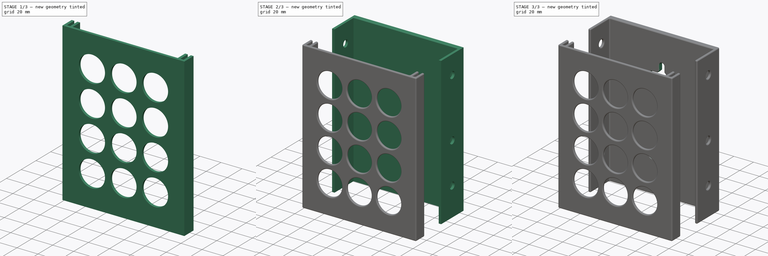
[diagram: build sequence overview — one tinted view per stage of 3, left to right]
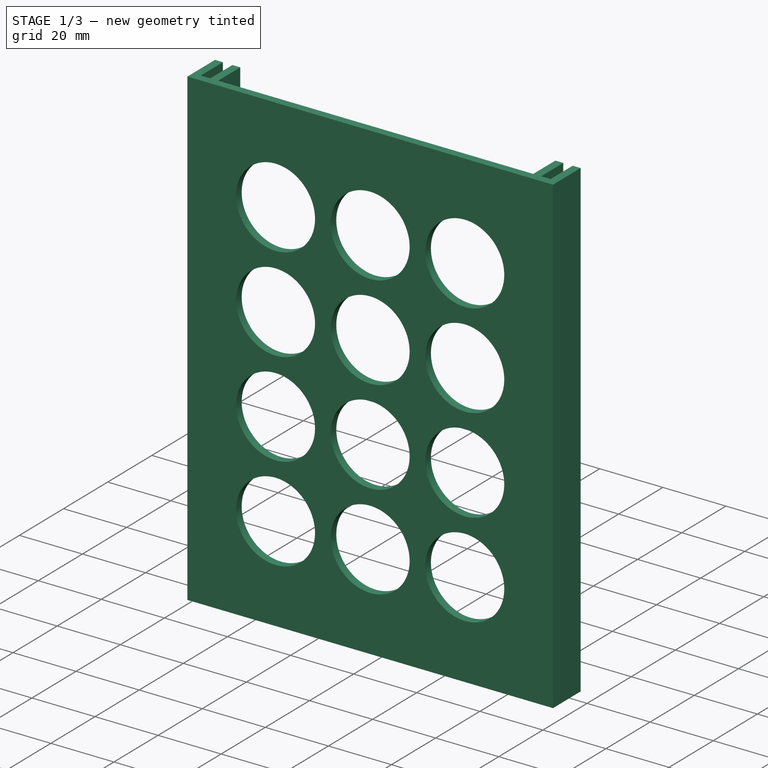
[diagram: stage 1 of 3 — iso view after this stage's code; geometry added in this stage tinted green]
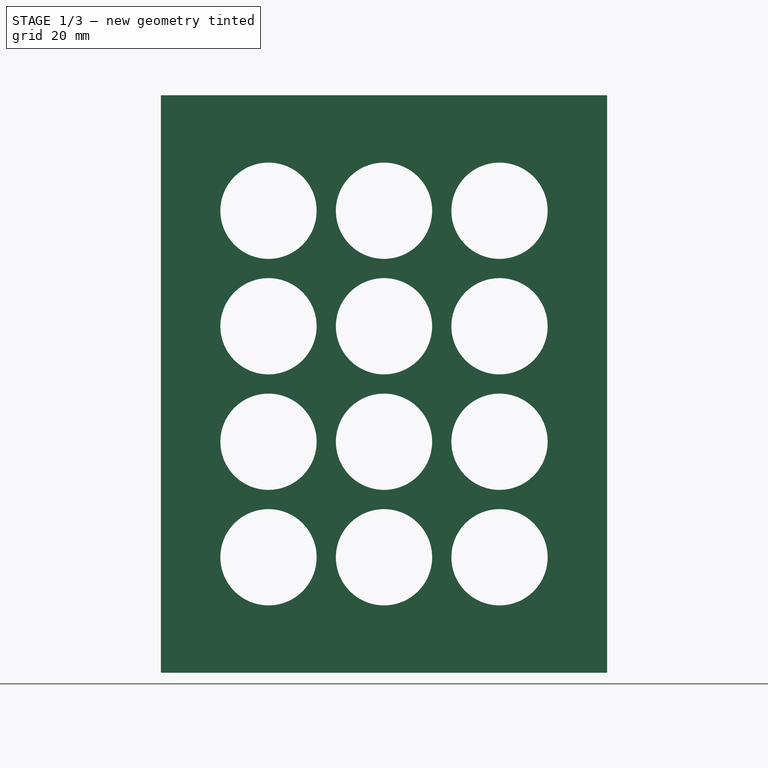
[diagram: stage 1 of 3 — front view after this stage's code; geometry added in this stage tinted green]
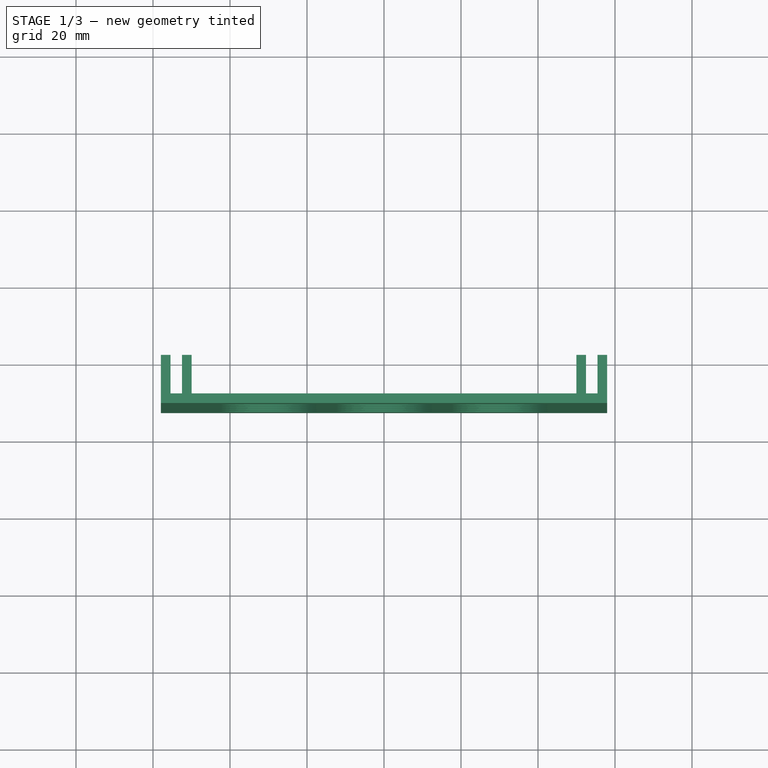
[diagram: stage 1 of 3 — top view after this stage's code; geometry added in this stage tinted green]
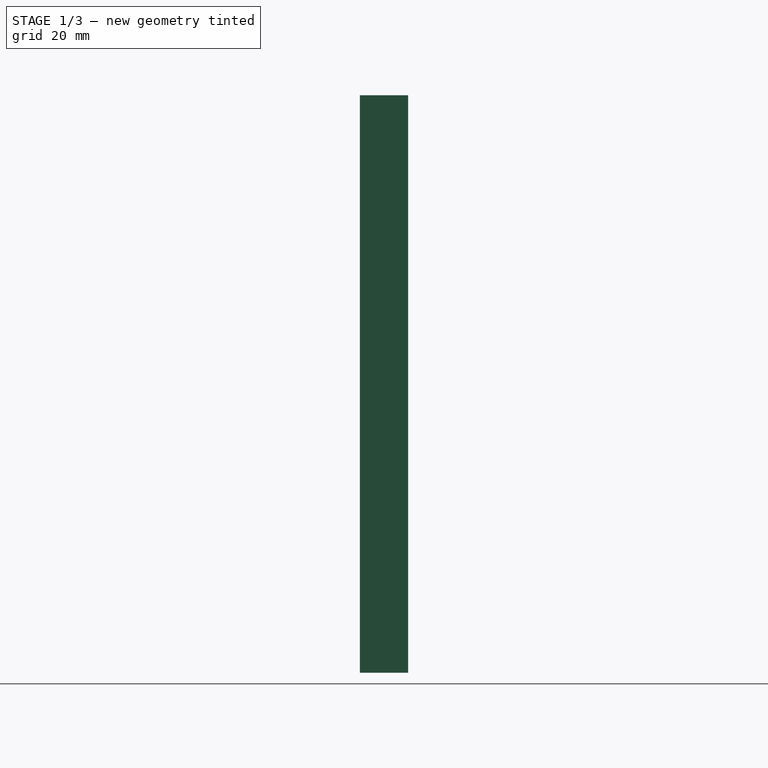
[diagram: stage 1 of 3 — right view after this stage's code; geometry added in this stage tinted green]
FCSTD DOCUMENT  (FreeCAD 1.0R39319 (Git))
Label: DriveWallMount
License: All rights reserved
LicenseURL: https://en.wikipedia.org/wiki/All_rights_reserved
objects: Sketcher::SketchObject×5, PartDesign::Pocket×3, PartDesign::Pad×2, PartDesign::Fillet×2, PartDesign::Body×2
note: 33 computed .brp shape members not serialized (recipe doc carries the construction recipe); baked Part::Feature solids carry a one-line shape summary decoded from their .brp

FEATURE [PartDesign::Body] Body  label="MountBody"
  AllowCompound = false
  Group = -> [Sketch,Pad,Sketch001,Pocket,Sketch002,Pocket001,Fillet]
  Origin = -> Origin
  Tip = -> Fillet
FEATURE [Sketcher::SketchObject] Sketch003  label="Lid"
  ArcFitTolerance = 1e-06
  AttachmentSupport = -> [XY_Plane001]
  FullyConstrained = true
  MakeInternals = false
  MapMode = 5
  sketch-geometry (25):
    g0: LineSegment StartX=-57.95 StartY=-50 StartZ=0 EndX=-57.95 EndY=-52.5 EndZ=0
    g1: LineSegment StartX=-57.95 StartY=-52.5 StartZ=0 EndX=57.95 EndY=-52.5 EndZ=0
    g2: LineSegment StartX=57.95 StartY=-52.5 StartZ=0 EndX=57.95 EndY=-50 EndZ=0
    g3: LineSegment StartX=57.95 StartY=-50 StartZ=0 EndX=-57.95 EndY=-50 EndZ=0
    g4: GeomPoint [constr] X=0 Y=-51.25 Z=0
    g5: LineSegment StartX=-57.95 StartY=-50 StartZ=0 EndX=-55.45 EndY=-50 EndZ=0
    g6: LineSegment StartX=-55.45 StartY=-50 StartZ=0 EndX=-55.45 EndY=-40 EndZ=0
    g7: LineSegment StartX=-55.45 StartY=-40 StartZ=0 EndX=-57.95 EndY=-40 EndZ=0
    g8: LineSegment StartX=-57.95 StartY=-40 StartZ=0 EndX=-57.95 EndY=-50 EndZ=0
    g9: GeomPoint [constr] X=-56.7 Y=-45 Z=0
    g10: LineSegment StartX=-52.45 StartY=-50 StartZ=0 EndX=-49.95 EndY=-50 EndZ=0
    g11: LineSegment StartX=-49.95 StartY=-50 StartZ=0 EndX=-49.95 EndY=-40 EndZ=0
    g12: LineSegment StartX=-49.95 StartY=-40 StartZ=0 EndX=-52.45 EndY=-40 EndZ=0
    g13: LineSegment StartX=-52.45 StartY=-40 StartZ=0 EndX=-52.45 EndY=-50 EndZ=0
    g14: GeomPoint [constr] X=-51.2 Y=-45 Z=0
    g15: LineSegment StartX=49.95 StartY=-40 StartZ=0 EndX=49.95 EndY=-50 EndZ=0
    g16: LineSegment StartX=49.95 StartY=-50 StartZ=0 EndX=52.45 EndY=-50 EndZ=0
    g17: LineSegment StartX=52.45 StartY=-50 StartZ=0 EndX=52.45 EndY=-40 EndZ=0
    g18: LineSegment StartX=52.45 StartY=-40 StartZ=0 EndX=49.95 EndY=-40 EndZ=0
    g19: GeomPoint [constr] X=51.2 Y=-45 Z=0
    g20: LineSegment StartX=55.45 StartY=-40 StartZ=0 EndX=55.45 EndY=-50 EndZ=0
    g21: LineSegment StartX=55.45 StartY=-50 StartZ=0 EndX=57.95 EndY=-50 EndZ=0
    g22: LineSegment StartX=57.95 StartY=-50 StartZ=0 EndX=57.95 EndY=-40 EndZ=0
    g23: LineSegment StartX=57.95 StartY=-40 StartZ=0 EndX=55.45 EndY=-40 EndZ=0
    g24: GeomPoint [constr] X=56.7 Y=-45 Z=0
  constraints (63):
    c: Coincident(g0,g1)
    c: Coincident(g1,g2)
    c: Coincident(g2,g3)
    c: Coincident(g3,g0)
    c: Vertical(g0)
    c: Vertical(g2)
    c: Horizontal(g1)
    c: Horizontal(g3)
    c: Symmetric(g2,g0,g4)
    c: PointOnObject(g4,g-2)
    c: Coincident(g5,g6)
    c: Coincident(g6,g7)
    c: Coincident(g7,g8)
    c: Coincident(g8,g5)
    c: Horizontal(g5)
    c: Horizontal(g7)
    c: Vertical(g6)
    c: Vertical(g8)
    c: Symmetric(g7,g5,g9)
    c: Coincident(g10,g11)
    c: Coincident(g11,g12)
    c: Coincident(g12,g13)
    c: Coincident(g13,g10)
    c: Horizontal(g10)
    c: Horizontal(g12)
    c: Vertical(g11)
    c: Vertical(g13)
    c: Symmetric(g12,g10,g14)
    c: Coincident(g15,g16)
    c: Coincident(g16,g17)
    c: Coincident(g17,g18)
    c: Coincident(g18,g15)
    c: Vertical(g15)
    c: Vertical(g17)
    c: Horizontal(g16)
    c: Horizontal(g18)
    c: Symmetric(g17,g15,g19)
    c: Coincident(g20,g21)
    c: Coincident(g21,g22)
    c: Coincident(g22,g23)
    c: Coincident(g23,g20)
    c: Vertical(g20)
    c: Vertical(g22)
    c: Horizontal(g21)
    c: Horizontal(g23)
    c: Symmetric(g22,g20,g24)
    c: Distance(g7,g7) = 2.5
    c: Distance(g12,g12) = 2.5
    c: Distance(g18,g18) = 2.5
    c: Distance(g23,g23) = 2.5
    c: Distance(g0,g0) = 2.5
    c: DistanceY(g8,g8) = 10
    c: DistanceY(g11,g11) = 10
    c: DistanceY(g15,g15) = 10
    c: DistanceY(g22,g22) = 10
    c: Coincident(g0,g5)
    c: PointOnObject(g10,g3)
    c: Coincident(g2,g21)
    c: PointOnObject(g16,g3)
    c: Distance(g20,g17) = 3
    c: Distance(g13,g6) = 3
    c: Distance(g20,g6) = 110.9
    c: Distance(g3,g-1) = 50
FEATURE [PartDesign::Pad] Pad001  label="LidPad"
  Direction = (0,0,1)
  Length = 150
  Length2 = 10
  Profile = -> Sketch003
  ReferenceAxis = -> Sketch003 [N_Axis]
  Refine = true
  Suppressed = false
  Type = 0
FEATURE [Sketcher::SketchObject] Sketch004  label="Holes"
  ArcFitTolerance = 1e-06
  AttachmentSupport = -> [Pad001]
  ExternalGeometry = -> [Pad001]
  FullyConstrained = true
  MakeInternals = false
  MapMode = 5
  Placement = pos=(0,-52.5,0) rot=(1,0,0;1.5708rad)
  sketch-geometry (18):
    g0: LineSegment [constr] StartX=-57.95 StartY=120 StartZ=0 EndX=57.95 EndY=120 EndZ=0
    g1: LineSegment [constr] StartX=-57.95 StartY=90 StartZ=0 EndX=57.95 EndY=90 EndZ=0
    g2: LineSegment [constr] StartX=-57.95 StartY=60 StartZ=0 EndX=57.95 EndY=60 EndZ=0
    g3: LineSegment [constr] StartX=-57.95 StartY=30 StartZ=0 EndX=57.95 EndY=30 EndZ=0
    g4: LineSegment [constr] StartX=-30 StartY=150 StartZ=0 EndX=-30 EndY=0 EndZ=0
    g5: LineSegment [constr] StartX=30 StartY=150 StartZ=0 EndX=30 EndY=0 EndZ=0
    g6: Circle CenterX=-30 CenterY=120 CenterZ=0 NormalX=0 NormalY=0 NormalZ=1 AngleXU=0 Radius=12.5
    g7: Circle CenterX=0 CenterY=120 CenterZ=0 NormalX=0 NormalY=0 NormalZ=1 AngleXU=0 Radius=12.5
    g8: Circle CenterX=30 CenterY=120 CenterZ=0 NormalX=0 NormalY=0 NormalZ=1 AngleXU=0 Radius=12.5
    g9: Circle CenterX=-30 CenterY=90 CenterZ=0 NormalX=0 NormalY=0 NormalZ=1 AngleXU=0 Radius=12.5
    g10: Circle CenterX=0 CenterY=90 CenterZ=0 NormalX=0 NormalY=0 NormalZ=1 AngleXU=0 Radius=12.5
    g11: Circle CenterX=30 CenterY=90 CenterZ=0 NormalX=0 NormalY=0 NormalZ=1 AngleXU=0 Radius=12.5
    g12: Circle CenterX=-30 CenterY=60 CenterZ=0 NormalX=0 NormalY=0 NormalZ=1 AngleXU=0 Radius=12.5
    g13: Circle CenterX=0 CenterY=60 CenterZ=0 NormalX=0 NormalY=0 NormalZ=1 AngleXU=0 Radius=12.5
    g14: Circle CenterX=30 CenterY=60 CenterZ=0 NormalX=0 NormalY=0 NormalZ=1 AngleXU=0 Radius=12.5
    g15: Circle CenterX=-30 CenterY=30 CenterZ=0 NormalX=0 NormalY=0 NormalZ=1 AngleXU=0 Radius=12.5
    g16: Circle CenterX=0 CenterY=30 CenterZ=0 NormalX=0 NormalY=0 NormalZ=1 AngleXU=0 Radius=12.5
    g17: Circle CenterX=30 CenterY=30 CenterZ=0 NormalX=0 NormalY=0 NormalZ=1 AngleXU=0 Radius=12.5
  constraints (60):
    c: PointOnObject(g0,g-4)
    c: PointOnObject(g0,g-5)
    c: Horizontal(g0)
    c: PointOnObject(g1,g-4)
    c: PointOnObject(g1,g-5)
    c: Horizontal(g1)
    c: PointOnObject(g2,g-4)
    c: PointOnObject(g2,g-5)
    c: Horizontal(g2)
    c: PointOnObject(g3,g-4)
    c: PointOnObject(g3,g-5)
    c: Horizontal(g3)
    c: Distance(g-3,g3) = 30
    c: Distance(g2,g3) = 30
    c: Distance(g1,g2) = 30
    c: Distance(g0,g1) = 30
    c: PointOnObject(g4,g-6)
    c: PointOnObject(g4,g-3)
    c: Vertical(g4)
    c: PointOnObject(g5,g-6)
    c: PointOnObject(g5,g-3)
    c: Vertical(g5)
    c: Distance(g-2,g4) = 30
    c: Distance(g-2,g5) = 30
    c: PointOnObject(g6,g0)
    c: PointOnObject(g7,g0)
    c: PointOnObject(g8,g0)
    c: PointOnObject(g9,g1)
    c: PointOnObject(g10,g1)
    c: PointOnObject(g11,g1)
    c: PointOnObject(g12,g2)
    c: PointOnObject(g13,g2)
    c: PointOnObject(g14,g2)
    c: PointOnObject(g15,g3)
    c: PointOnObject(g16,g3)
    c: PointOnObject(g17,g3)
    c: PointOnObject(g15,g4)
    c: PointOnObject(g16,g-2)
    c: PointOnObject(g17,g5)
    c: PointOnObject(g14,g5)
    c: PointOnObject(g13,g-2)
    c: PointOnObject(g12,g4)
    c: PointOnObject(g11,g5)
    c: PointOnObject(g10,g-2)
    c: PointOnObject(g9,g4)
    c: PointOnObject(g8,g5)
    c: PointOnObject(g7,g-2)
    c: PointOnObject(g6,g4)
    c: Diameter(g6) = 25
    c: Diameter(g7) = 25
    c: Diameter(g8) = 25
    c: Diameter(g9) = 25
    c: Diameter(g10) = 25
    c: Diameter(g11) = 25
    c: Diameter(g12) = 25
    c: Diameter(g13) = 25
    c: Diameter(g14) = 25
    c: Diameter(g15) = 25
    c: Diameter(g16) = 25
    c: Diameter(g17) = 25
FEATURE [PartDesign::Pocket] Pocket002  label="HolesPocket"
  BaseFeature = -> Pad001
  Direction = (0,1,-2e-16)
  Length = 5
  Length2 = 5
  Profile = -> Sketch004
  ReferenceAxis = -> Sketch004 [N_Axis]
  Refine = true
  Suppressed = false
  Type = 0
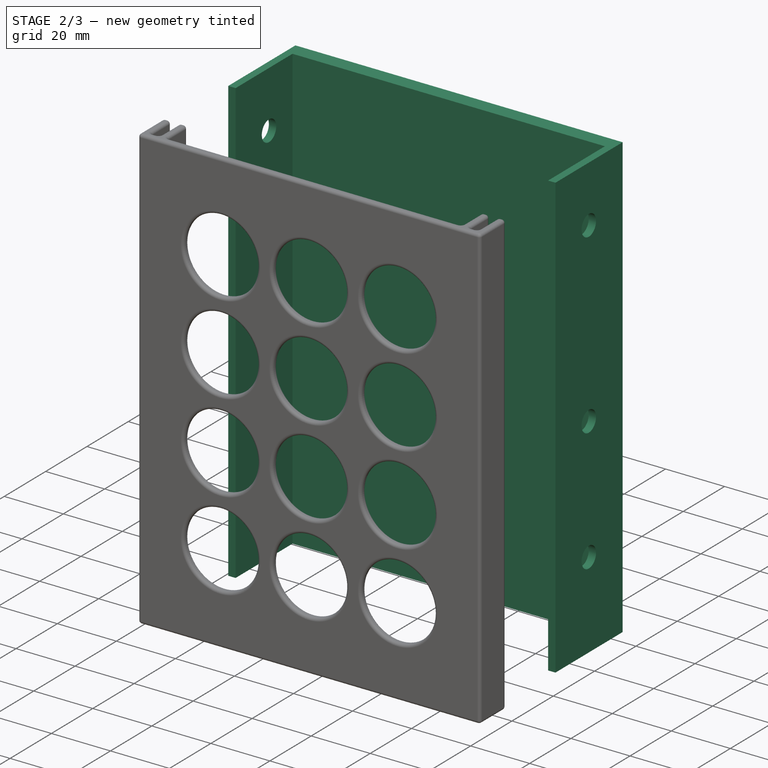
[diagram: stage 2 of 3 — iso view after this stage's code; geometry added in this stage tinted green]
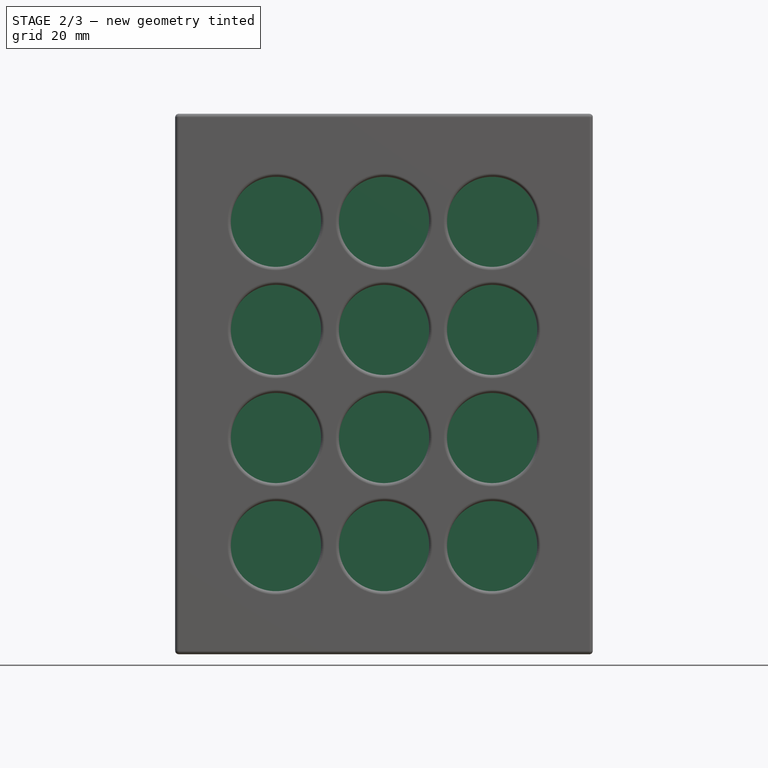
[diagram: stage 2 of 3 — front view after this stage's code; geometry added in this stage tinted green]
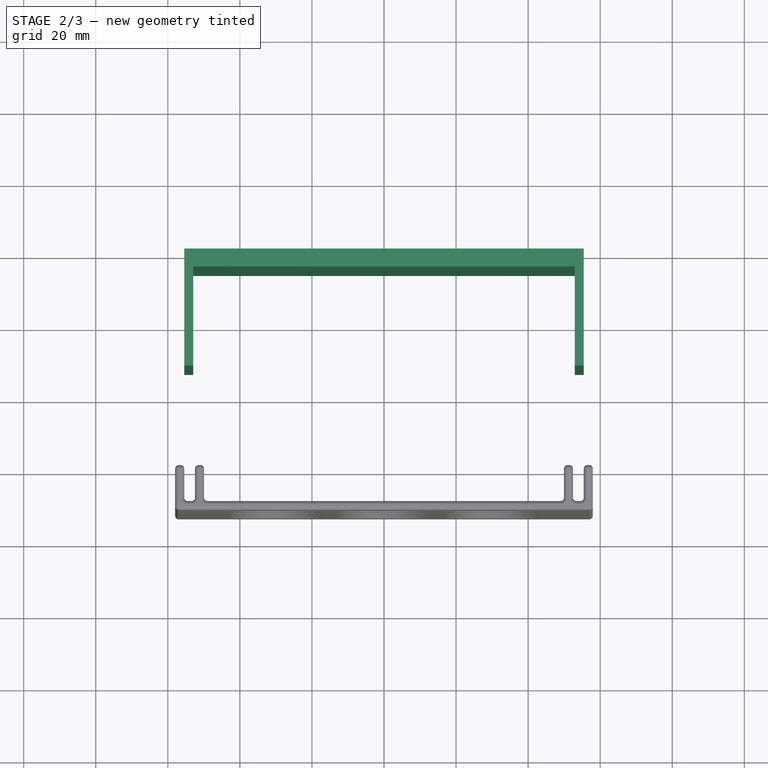
[diagram: stage 2 of 3 — top view after this stage's code; geometry added in this stage tinted green]
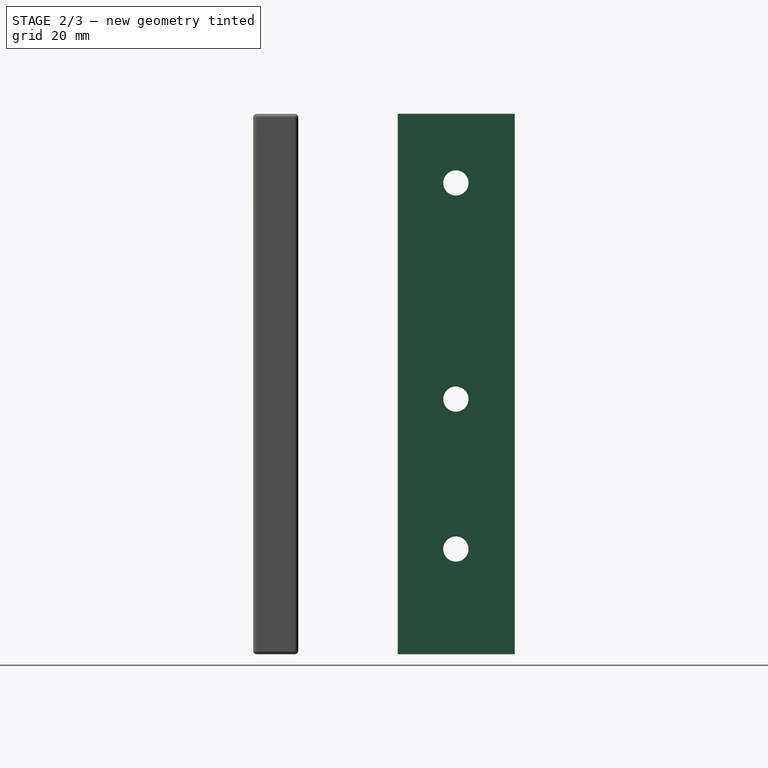
[diagram: stage 2 of 3 — right view after this stage's code; geometry added in this stage tinted green]
FEATURE [Sketcher::SketchObject] Sketch  label="MainBody"
  ArcFitTolerance = 1e-06
  AttachmentSupport = -> [XY_Plane]
  FullyConstrained = true
  MakeInternals = false
  MapMode = 5
  sketch-geometry (15):
    g0: LineSegment [constr] StartX=-50.925 StartY=10.1 StartZ=0 EndX=-50.925 EndY=-10.1 EndZ=0
    g1: LineSegment [constr] StartX=-50.925 StartY=-10.1 StartZ=0 EndX=50.925 EndY=-10.1 EndZ=0
    g2: LineSegment [constr] StartX=50.925 StartY=-10.1 StartZ=0 EndX=50.925 EndY=10.1 EndZ=0
    g3: LineSegment [constr] StartX=50.925 StartY=10.1 StartZ=0 EndX=-50.925 EndY=10.1 EndZ=0
    g4: GeomPoint [constr] X=0 Y=0 Z=0
    g5: GeomPoint [constr] X=0 Y=0 Z=0
    g6: GeomPoint [constr] X=0 Y=0 Z=0
    g7: LineSegment StartX=-55.425 StartY=-12.4 StartZ=0 EndX=-52.925 EndY=-12.4 EndZ=0
    g8: LineSegment StartX=-52.925 StartY=-12.4 StartZ=0 EndX=-52.925 EndY=15.1 EndZ=0
    g9: LineSegment StartX=-52.925 StartY=15.1 StartZ=0 EndX=52.925 EndY=15.1 EndZ=0
    g10: LineSegment StartX=52.925 StartY=15.1 StartZ=0 EndX=52.925 EndY=-12.4 EndZ=0
    g11: LineSegment StartX=52.925 StartY=-12.4 StartZ=0 EndX=55.425 EndY=-12.4 EndZ=0
    g12: LineSegment StartX=55.425 StartY=-12.4 StartZ=0 EndX=55.425 EndY=20.1 EndZ=0
    g13: LineSegment StartX=55.425 StartY=20.1 StartZ=0 EndX=-55.425 EndY=20.1 EndZ=0
    g14: LineSegment StartX=-55.425 StartY=20.1 StartZ=0 EndX=-55.425 EndY=-12.4 EndZ=0
  constraints (38):
    c: Coincident(g0,g1)
    c: Coincident(g1,g2)
    c: Coincident(g2,g3)
    c: Coincident(g3,g0)
    c: Vertical(g0)
    c: Vertical(g2)
    c: Horizontal(g1)
    c: Horizontal(g3)
    c: Symmetric(g2,g0,g4)
    c: Coincident(g4,g-1)
    c: DistanceY(g2,g2) = 20.2
    c: DistanceX(g3,g3) = 101.85
    c: Coincident(g5,g4)
    c: Coincident(g6,g4)
    c: Horizontal(g7)
    c: Coincident(g7,g8)
    c: Vertical(g8)
    c: Coincident(g8,g9)
    c: Horizontal(g9)
    c: Coincident(g9,g10)
    c: Vertical(g10)
    c: Coincident(g10,g11)
    c: Horizontal(g11)
    c: Coincident(g11,g12)
    c: Vertical(g12)
    c: Coincident(g12,g13)
    c: Horizontal(g13)
    c: Coincident(g13,g14)
    c: Coincident(g14,g7)
    c: Vertical(g14)
    c: Distance(g8,g0) = 2
    c: Distance(g2,g10) = 2
    c: Distance(g9,g3) = 5
    c: Distance(g9,g13) = 5
    c: Distance(g8,g14) = 2.5
    c: Distance(g12,g10) = 2.5
    c: DistanceY(g14,g14) = 32.5
    c: DistanceY(g12,g12) = 32.5
FEATURE [PartDesign::Pad] Pad  label="MainBodyPad"
  Direction = (0,0,1)
  Length = 150
  Length2 = 10
  Profile = -> Sketch
  ReferenceAxis = -> Sketch [N_Axis]
  Refine = true
  Suppressed = false
  Type = 0
FEATURE [Sketcher::SketchObject] Sketch001  label="SideHoles"
  ArcFitTolerance = 1e-06
  AttachmentSupport = -> [Pad]
  ExternalGeometry = -> [Pad]
  FullyConstrained = true
  MakeInternals = false
  MapMode = 5
  Placement = pos=(55.425,0,0) rot=(0.57735,0.57735,0.57735;2.0944rad)
  sketch-geometry (9):
    g0: LineSegment [constr] StartX=-10.1 StartY=147.7 StartZ=0 EndX=-10.1 EndY=0.7 EndZ=0
    g1: LineSegment [constr] StartX=-10.1 StartY=0.7 StartZ=0 EndX=10.1 EndY=0.7 EndZ=0
    g2: LineSegment [constr] StartX=10.1 StartY=0.7 StartZ=0 EndX=10.1 EndY=147.7 EndZ=0
    g3: LineSegment [constr] StartX=10.1 StartY=147.7 StartZ=0 EndX=-10.1 EndY=147.7 EndZ=0
    g4: GeomPoint [constr] X=0 Y=74.2 Z=0
    g5: LineSegment [constr] StartX=3.75 StartY=0.7 StartZ=0 EndX=3.75 EndY=147.7 EndZ=0
    g6: Circle CenterX=3.75 CenterY=29.2 CenterZ=0 NormalX=0 NormalY=0 NormalZ=1 AngleXU=0 Radius=3.5
    g7: Circle CenterX=3.75 CenterY=70.81 CenterZ=0 NormalX=0 NormalY=0 NormalZ=1 AngleXU=0 Radius=3.5
    g8: Circle CenterX=3.75 CenterY=130.8 CenterZ=0 NormalX=0 NormalY=0 NormalZ=1 AngleXU=0 Radius=3.5
  constraints (26):
    c: Coincident(g0,g1)
    c: Coincident(g1,g2)
    c: Coincident(g2,g3)
    c: Coincident(g3,g0)
    c: Vertical(g0)
    c: Vertical(g2)
    c: Horizontal(g1)
    c: Horizontal(g3)
    c: Symmetric(g2,g0,g4)
    c: PointOnObject(g4,g-2)
    c: DistanceX(g1,g1) = 20.2
    c: Distance(g-3,g3) = 2.3
    c: DistanceY(g0,g0) = 147
    c: PointOnObject(g5,g1)
    c: PointOnObject(g5,g3)
    c: Parallel(g5,g2)
    c: Distance(g2,g5) = 6.35
    c: PointOnObject(g6,g5)
    c: PointOnObject(g7,g5)
    c: PointOnObject(g8,g5)
    c: Diameter(g8) = 7
    c: Diameter(g7) = 7
    c: Diameter(g6) = 7
    c: Distance(g6,g1) = 28.5
    c: DistanceY(g6,g7) = 41.61
    c: DistanceY(g6,g8) = 101.6
FEATURE [PartDesign::Pocket] Pocket  label="SideHolesPocket"
  BaseFeature = -> Pad
  Direction = (-1,0,0)
  Length = 5
  Length2 = 5
  Profile = -> Sketch001
  ReferenceAxis = -> Sketch001 [N_Axis]
  Refine = true
  Suppressed = false
  Type = 1
FEATURE [PartDesign::Fillet] Fillet001
  Base = -> Pocket002
  BaseFeature = -> Pocket002
  Radius = 1
  Refine = true
  SupportTransform = false
  Suppressed = false
  UseAllEdges = true
FEATURE [PartDesign::Body] Body001  label="MountLid"
  AllowCompound = false
  Group = -> [Sketch003,Pad001,Sketch004,Pocket002,Fillet001]
  Origin = -> Origin001
  Tip = -> Fillet001
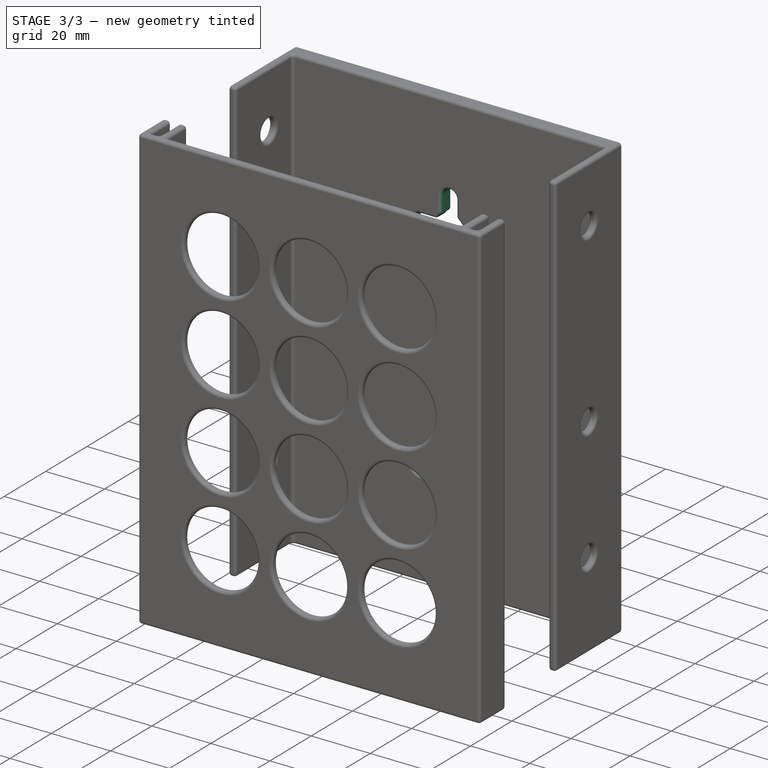
[diagram: stage 3 of 3 — iso view after this stage's code; geometry added in this stage tinted green]
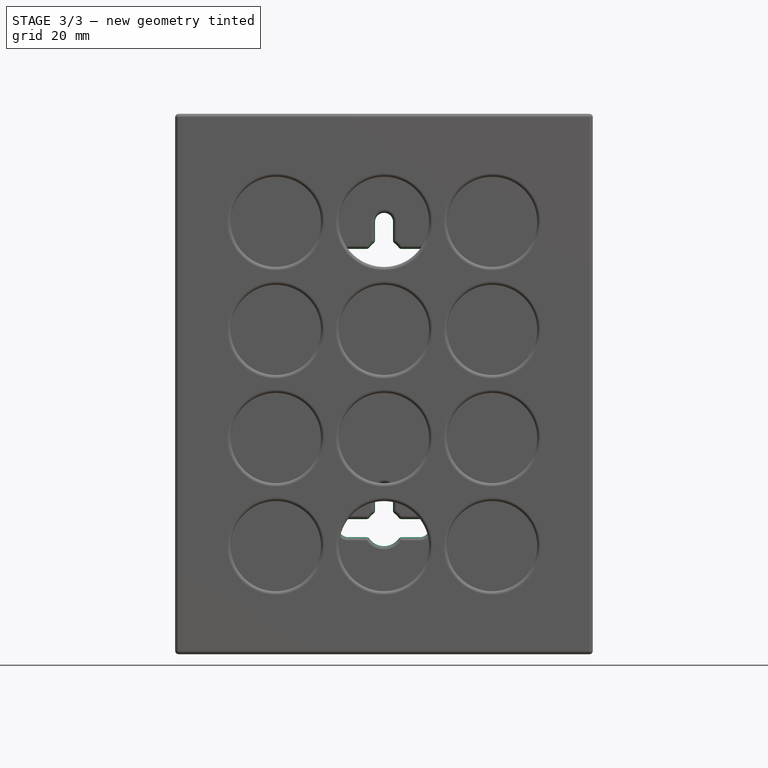
[diagram: stage 3 of 3 — front view after this stage's code; geometry added in this stage tinted green]
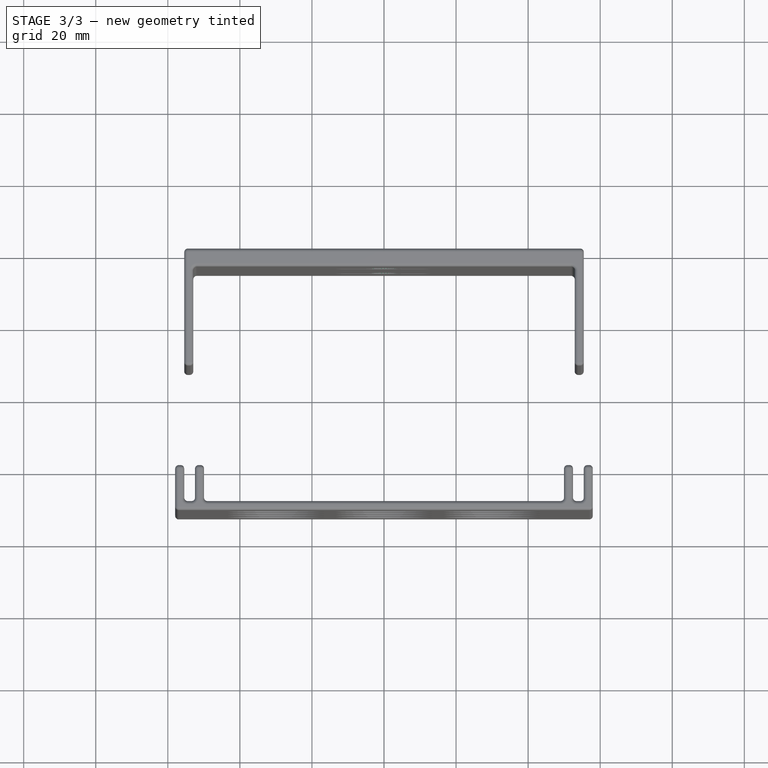
[diagram: stage 3 of 3 — top view after this stage's code; geometry added in this stage tinted green]
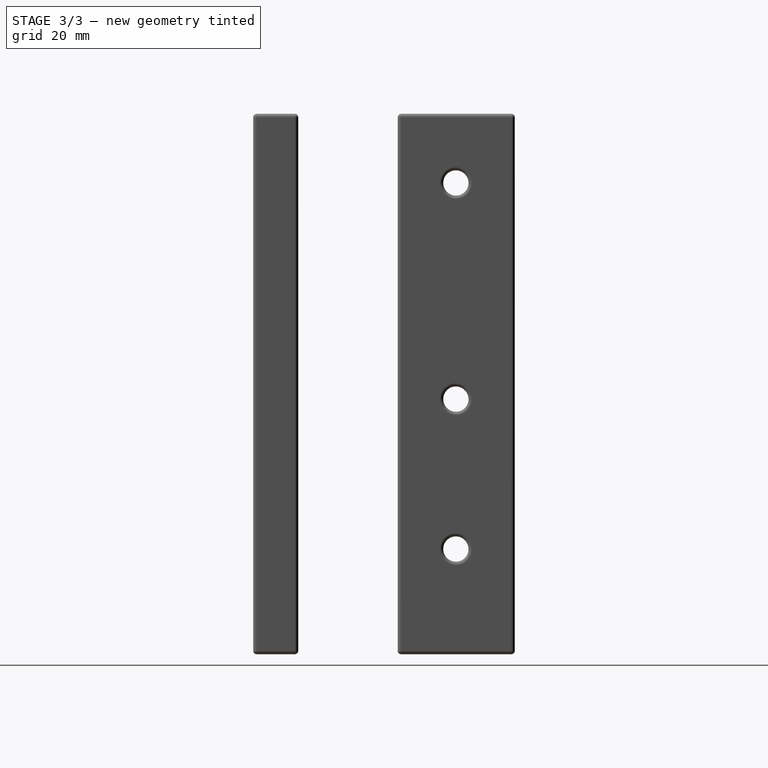
[diagram: stage 3 of 3 — right view after this stage's code; geometry added in this stage tinted green]
FEATURE [Sketcher::SketchObject] Sketch002  label="ScrewHoles"
  ArcFitTolerance = 1e-06
  AttachmentSupport = -> [Pocket]
  ExternalGeometry = -> [Pocket]
  FullyConstrained = true
  MakeInternals = false
  MapMode = 5
  Placement = pos=(0,15.1,0) rot=(1,0,0;1.5708rad)
  sketch-geometry (26):
    g0: ArcOfCircle CenterX=0 CenterY=120 CenterZ=0 NormalX=0 NormalY=0 NormalZ=1 AngleXU=0 Radius=2.5 StartAngle=-5.568e-12 EndAngle=3.14159
    g1: ArcOfCircle CenterX=2e-16 CenterY=110 CenterZ=0 NormalX=0 NormalY=0 NormalZ=1 AngleXU=0 Radius=2.5 StartAngle=3.14159 EndAngle=6.28319
    g2: LineSegment StartX=2.5 StartY=120 StartZ=0 EndX=2.5 EndY=110 EndZ=0
    g3: LineSegment StartX=-2.5 StartY=120 StartZ=0 EndX=-2.5 EndY=110 EndZ=0
    g4: ArcOfCircle CenterX=0 CenterY=45 CenterZ=0 NormalX=0 NormalY=0 NormalZ=1 AngleXU=0 Radius=2.5 StartAngle=-9e-16 EndAngle=3.14159
    g5: ArcOfCircle CenterX=1e-16 CenterY=35 CenterZ=0 NormalX=0 NormalY=0 NormalZ=1 AngleXU=0 Radius=2.5 StartAngle=3.14159 EndAngle=6.28319
    g6: LineSegment StartX=2.5 StartY=45 StartZ=0 EndX=2.5 EndY=35 EndZ=0
    g7: LineSegment StartX=-2.5 StartY=45 StartZ=0 EndX=-2.5 EndY=35 EndZ=0
    g8: Circle CenterX=2e-16 CenterY=110 CenterZ=0 NormalX=0 NormalY=0 NormalZ=1 AngleXU=0 Radius=5
    g9: Circle CenterX=1e-16 CenterY=35 CenterZ=0 NormalX=0 NormalY=0 NormalZ=1 AngleXU=0 Radius=5
    g10: ArcOfCircle CenterX=2e-16 CenterY=110 CenterZ=0 NormalX=0 NormalY=0 NormalZ=1 AngleXU=0 Radius=2.5 StartAngle=4.71239 EndAngle=7.85398
    g11: ArcOfCircle CenterX=-10 CenterY=110 CenterZ=0 NormalX=0 NormalY=0 NormalZ=1 AngleXU=0 Radius=2.5 StartAngle=1.5708 EndAngle=4.71239
    g12: LineSegment StartX=-3e-16 StartY=107.5 StartZ=0 EndX=-10 EndY=107.5 EndZ=0
    g13: LineSegment StartX=1e-15 StartY=112.5 StartZ=0 EndX=-10 EndY=112.5 EndZ=0
    g14: ArcOfCircle CenterX=2e-16 CenterY=110 CenterZ=0 NormalX=0 NormalY=0 NormalZ=1 AngleXU=0 Radius=2.5 StartAngle=1.5708 EndAngle=4.71239
    g15: ArcOfCircle CenterX=10 CenterY=110 CenterZ=0 NormalX=0 NormalY=0 NormalZ=1 AngleXU=0 Radius=2.5 StartAngle=4.71239 EndAngle=7.85398
    g16: LineSegment StartX=-2e-16 StartY=112.5 StartZ=0 EndX=10 EndY=112.5 EndZ=0
    g17: LineSegment StartX=-3e-16 StartY=107.5 StartZ=0 EndX=10 EndY=107.5 EndZ=0
    g18: ArcOfCircle CenterX=1e-16 CenterY=35 CenterZ=0 NormalX=0 NormalY=0 NormalZ=1 AngleXU=0 Radius=2.5 StartAngle=4.71239 EndAngle=7.85398
    g19: ArcOfCircle CenterX=-10 CenterY=35 CenterZ=0 NormalX=0 NormalY=0 NormalZ=1 AngleXU=0 Radius=2.5 StartAngle=1.5708 EndAngle=4.71239
    g20: LineSegment StartX=-4e-16 StartY=32.5 StartZ=0 EndX=-10 EndY=32.5 EndZ=0
    g21: LineSegment StartX=9e-16 StartY=37.5 StartZ=0 EndX=-10 EndY=37.5 EndZ=0
    g22: ArcOfCircle CenterX=1e-16 CenterY=35 CenterZ=0 NormalX=0 NormalY=0 NormalZ=1 AngleXU=0 Radius=2.5 StartAngle=1.5708 EndAngle=4.71239
    g23: ArcOfCircle CenterX=10 CenterY=35 CenterZ=0 NormalX=0 NormalY=0 NormalZ=1 AngleXU=0 Radius=2.5 StartAngle=4.71239 EndAngle=7.85398
    g24: LineSegment StartX=-3e-16 StartY=37.5 StartZ=0 EndX=10 EndY=37.5 EndZ=0
    g25: LineSegment StartX=-4e-16 StartY=32.5 StartZ=0 EndX=10 EndY=32.5 EndZ=0
  constraints (60):
    c: Tangent(g0,g2) = 1.5708
    c: Tangent(g0,g3) = -1.5708
    c: Tangent(g1,g2) = 1.5708
    c: Tangent(g1,g3) = -1.5708
    c: Equal(g0,g1)
    c: Vertical(g3)
    c: PointOnObject(g0,g-2)
    c: Tangent(g4,g6) = 1.5708
    c: Tangent(g4,g7) = -1.5708
    c: Tangent(g5,g6) = 1.5708
    c: Tangent(g5,g7) = -1.5708
    c: Equal(g4,g5)
    c: Vertical(g7)
    c: PointOnObject(g4,g-2)
    c: Distance(g0,g4) = 75
    c: Distance(g0,g-3) = 30
    c: Coincident(g8,g1)
    c: Coincident(g9,g5)
    c: Diameter(g9) = 10
    c: Diameter(g8) = 10
    c: Tangent(g10,g12) = 1.5708
    c: Tangent(g10,g13) = -1.5708
    c: Tangent(g11,g12) = 1.5708
    c: Tangent(g11,g13) = -1.5708
    c: Equal(g10,g11)
    c: Coincident(g10,g1)
    c: Horizontal(g12)
    c: Radius(g0) = 2.5
    c: Radius(g11) = 2.5
    c: DistanceY(g2,g2) = 10
    c: DistanceX(g13,g13) = 10
    c: Tangent(g14,g16) = 1.5708
    c: Tangent(g14,g17) = -1.5708
    c: Tangent(g15,g16) = 1.5708
    c: Tangent(g15,g17) = -1.5708
    c: Equal(g14,g15)
    c: Coincident(g14,g1)
    c: Horizontal(g16)
    c: Radius(g15) = 2.5
    c: DistanceX(g16,g16) = 10
    c: Radius(g4) = 2.5
    c: DistanceY(g6,g6) = 10
    c: Tangent(g18,g20) = 1.5708
    c: Tangent(g18,g21) = -1.5708
    c: Tangent(g19,g20) = 1.5708
    c: Tangent(g19,g21) = -1.5708
    c: Equal(g18,g19)
    c: Coincident(g18,g5)
    c: Horizontal(g20)
    c: Tangent(g22,g24) = 1.5708
    c: Tangent(g22,g25) = -1.5708
    c: Tangent(g23,g24) = 1.5708
    c: Tangent(g23,g25) = -1.5708
    c: Equal(g22,g23)
    c: Coincident(g22,g5)
    c: Horizontal(g24)
    c: Radius(g19) = 2.5
    c: Radius(g23) = 2.5
    c: DistanceX(g21,g21) = 10
    c: DistanceX(g24,g24) = 10
FEATURE [PartDesign::Pocket] Pocket001  label="ScrewHolesPocket"
  BaseFeature = -> Pocket
  Direction = (0,1,-2e-16)
  Length = 5
  Length2 = 5
  Profile = -> Sketch002
  ReferenceAxis = -> Sketch002 [N_Axis]
  Refine = true
  Suppressed = false
  Type = 1
FEATURE [PartDesign::Fillet] Fillet
  Base = -> Pocket001
  BaseFeature = -> Pocket001
  Radius = 1
  Refine = true
  SupportTransform = false
  Suppressed = false
  UseAllEdges = true
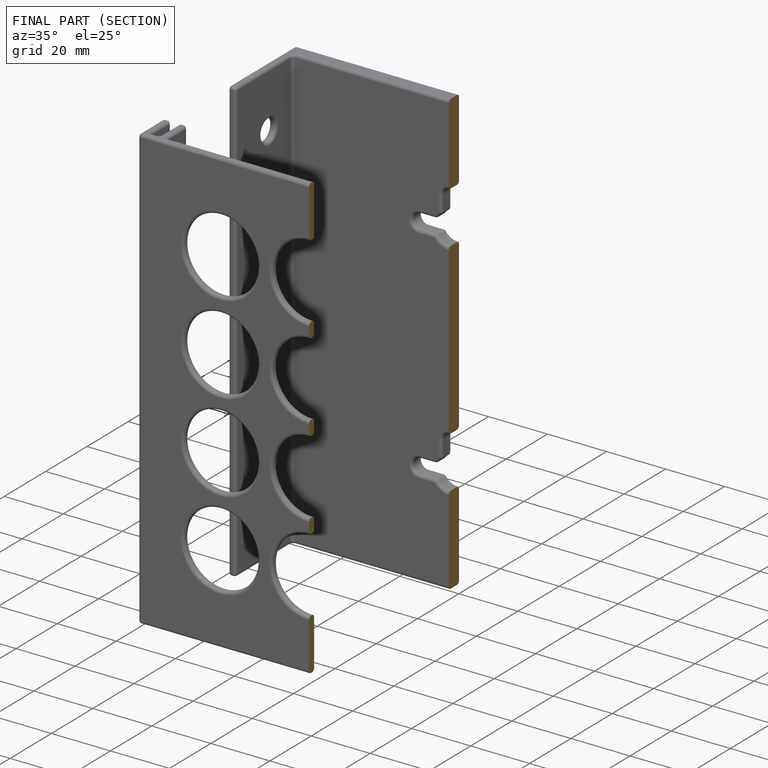
[diagram: finished part — half-section view (interior)]
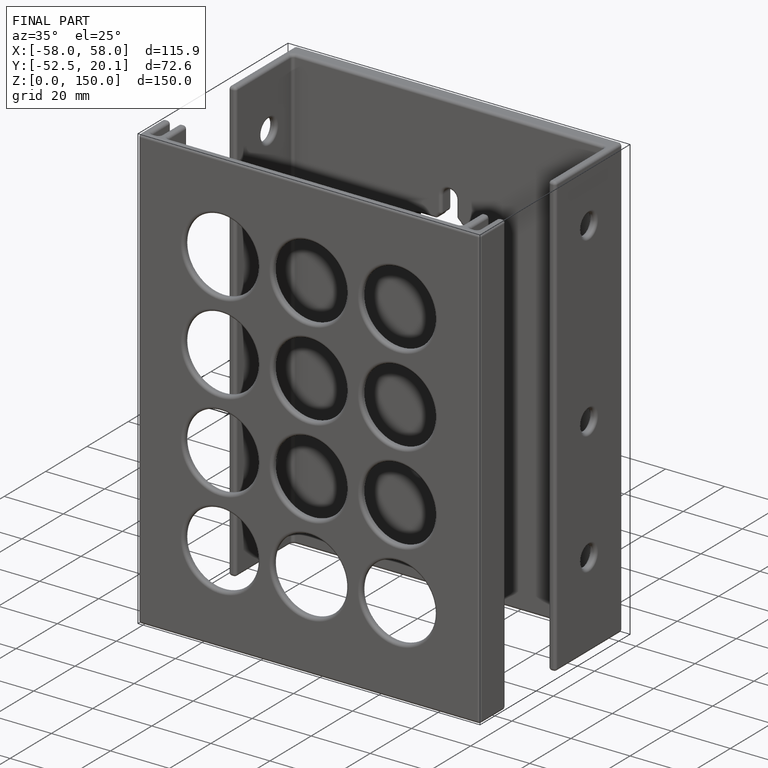
[diagram: finished part — iso view with bounding-box wireframe]
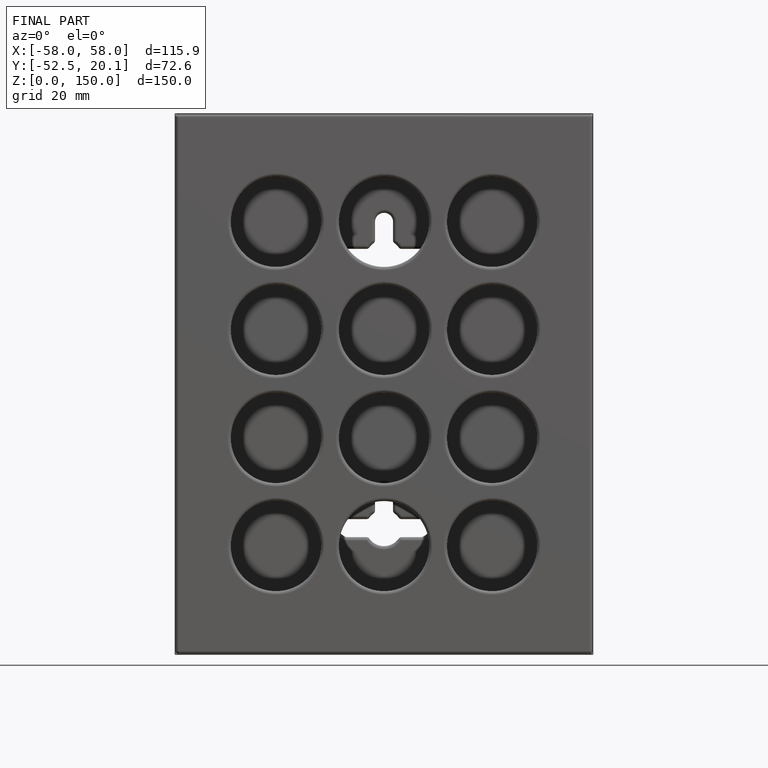
[diagram: finished part — front view with bounding-box wireframe]
